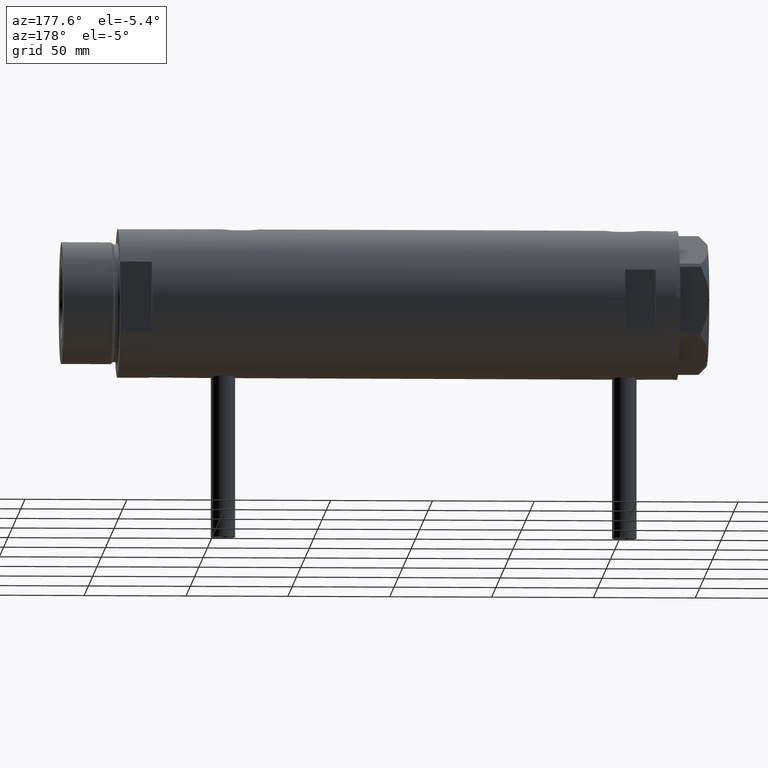
[diagram: clean part render]
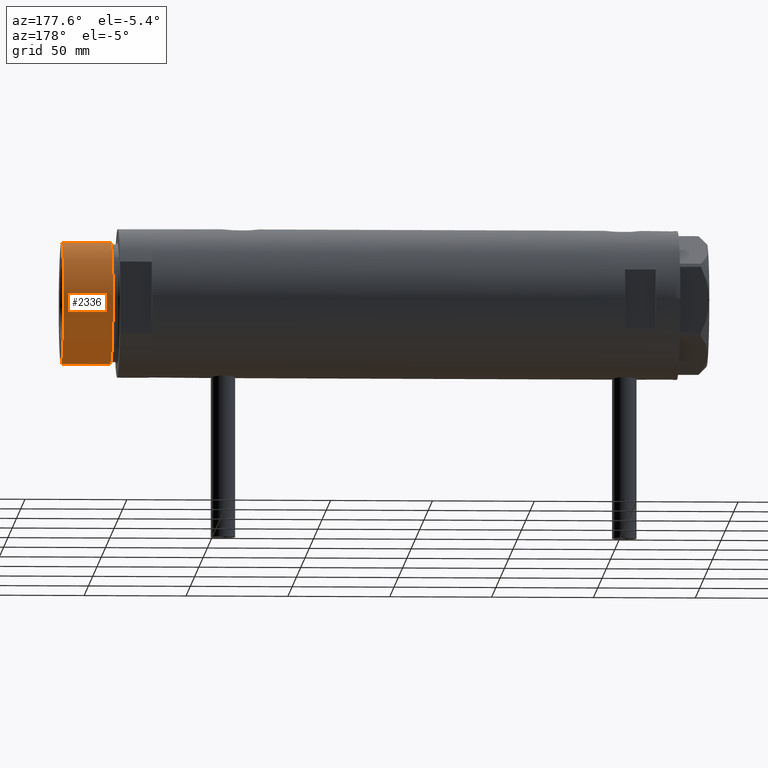
[diagram: same view with one face highlighted and labeled with its STEP entity id]
A machine part, auxiliary view. The second image highlights one B-rep face of the part: STEP entity #2336.
In plain terms, the highlighted cylindrical surface (partial cylindrical patch) has radius 30 mm, axis along (-1, -0, 0).
Its self-contained STEP definition (entity closure, byte-faithful):
#82 = ORIENTED_EDGE ( 'NONE', *, *, #2914, .F. ) ;
#101 = LINE ( 'NONE', #2957, #2978 ) ;
#190 = EDGE_CURVE ( 'NONE', #4591, #4777, #2376, .T. ) ;
#358 = VERTEX_POINT ( 'NONE', #2825 ) ;
#652 = AXIS2_PLACEMENT_3D ( 'NONE', #2251, #1893, #768 ) ;
#669 = DIRECTION ( 'NONE',  ( -1.000000000000000000, 0.000000000000000000, 0.000000000000000000 ) ) ;
#710 = CARTESIAN_POINT ( 'NONE',  ( 0.000000000000000000, 0.000000000000000000, 43.07000000000000028 ) ) ;
#768 = DIRECTION ( 'NONE',  ( 1.000000000000000000, 0.000000000000000000, 0.000000000000000000 ) ) ;
#1398 = CARTESIAN_POINT ( 'NONE',  ( -30.00000000000000000, 0.000000000000000000, 18.87384048104053846 ) ) ;
#1445 = ORIENTED_EDGE ( 'NONE', *, *, #3933, .F. ) ;
#1456 = DIRECTION ( 'NONE',  ( -0.000000000000000000, -0.000000000000000000, -1.000000000000000000 ) ) ;
#1581 = CARTESIAN_POINT ( 'NONE',  ( 0.000000000000000000, 0.000000000000000000, 18.87384048104053846 ) ) ;
#1893 = DIRECTION ( 'NONE',  ( 0.000000000000000000, 0.000000000000000000, 1.000000000000000000 ) ) ;
#2251 = CARTESIAN_POINT ( 'NONE',  ( 0.000000000000000000, 0.000000000000000000, 43.07000000000000028 ) ) ;
#2265 = CIRCLE ( 'NONE', #2897, 30.00000000000000000 ) ;
#2336 = ADVANCED_FACE ( 'NONE', ( #2547 ), #2872, .T. ) ;
#2362 = ORIENTED_EDGE ( 'NONE', *, *, #190, .T. ) ;
#2376 = LINE ( 'NONE', #3056, #4664 ) ;
#2472 = ORIENTED_EDGE ( 'NONE', *, *, #3294, .T. ) ;
#2547 = FACE_OUTER_BOUND ( 'NONE', #3754, .T. ) ;
#2825 = CARTESIAN_POINT ( 'NONE',  ( -30.00000000000000000, 0.000000000000000000, 43.07000000000000028 ) ) ;
#2872 = CYLINDRICAL_SURFACE ( 'NONE', #4519, 30.00000000000000000 ) ;
#2897 = AXIS2_PLACEMENT_3D ( 'NONE', #1581, #3043, #3116 ) ;
#2914 = EDGE_CURVE ( 'NONE', #358, #4728, #101, .T. ) ;
#2957 = CARTESIAN_POINT ( 'NONE',  ( -30.00000000000000000, 0.000000000000000000, 43.07000000000000028 ) ) ;
#2958 = CARTESIAN_POINT ( 'NONE',  ( 30.00000000000000000, 3.673940397442059178E-15, 43.07000000000000028 ) ) ;
#2978 = VECTOR ( 'NONE', #4428, 1000.000000000000000 ) ;
#3043 = DIRECTION ( 'NONE',  ( -0.000000000000000000, -0.000000000000000000, 1.000000000000000000 ) ) ;
#3056 = CARTESIAN_POINT ( 'NONE',  ( 30.00000000000000000, 3.673940397442059178E-15, 43.07000000000000028 ) ) ;
#3116 = DIRECTION ( 'NONE',  ( 1.000000000000000000, 0.000000000000000000, 0.000000000000000000 ) ) ;
#3294 = EDGE_CURVE ( 'NONE', #4777, #4728, #2265, .T. ) ;
#3754 = EDGE_LOOP ( 'NONE', ( #1445, #2362, #2472, #82 ) ) ;
#3933 = EDGE_CURVE ( 'NONE', #4591, #358, #3979, .T. ) ;
#3979 = CIRCLE ( 'NONE', #652, 30.00000000000000000 ) ;
#4291 = CARTESIAN_POINT ( 'NONE',  ( 30.00000000000000000, 3.673940397442059178E-15, 18.87384048104053846 ) ) ;
#4428 = DIRECTION ( 'NONE',  ( -0.000000000000000000, -0.000000000000000000, -1.000000000000000000 ) ) ;
#4519 = AXIS2_PLACEMENT_3D ( 'NONE', #710, #1456, #669 ) ;
#4591 = VERTEX_POINT ( 'NONE', #2958 ) ;
#4609 = DIRECTION ( 'NONE',  ( -0.000000000000000000, -0.000000000000000000, -1.000000000000000000 ) ) ;
#4664 = VECTOR ( 'NONE', #4609, 1000.000000000000000 ) ;
#4728 = VERTEX_POINT ( 'NONE', #1398 ) ;
#4777 = VERTEX_POINT ( 'NONE', #4291 ) ;